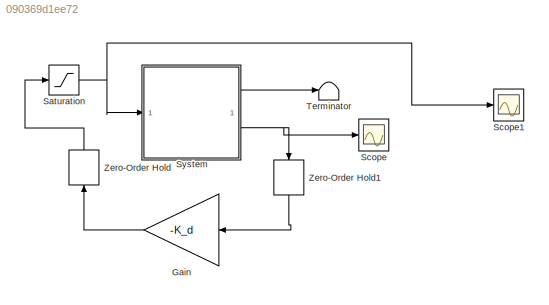
MODEL slx_090369d1ee72
KIND model
CONFIG AbsTol = auto
CONFIG EnableMultiTasking = off
CONFIG FixedStep = auto
CONFIG MaxStep = auto
CONFIG MinStep = auto
CONFIG RelTol = 1e-3
CONFIG SampleTimeConstraint = Unconstrained
CONFIG SolverName = VariableStepAuto
CONFIG StartTime = 0.0
CONFIG StopTime = 10
BLOCK [Gain] Gain
  Gain = -K_d
  Multiplication = Matrix(K*u) (u vector)
  NameLocation = top
BLOCK [Saturate] Saturation
  LowerLimit = -12
  UpperLimit = 12
BLOCK [Scope] Scope
  Floating = off
  NumInputPorts = 1
  ScopeSpecificationString = Simulink.scopes.TimeScopeBlockCfg('CurrentConfiguration', extmgr.ConfigurationSet(extmgr.Configuration('Core','General UI',true),extmgr.Configuration('Core','Source UI',true),extmgr.Configuration('Sources','WiredSimulink',true),extmgr.Configuration('Visuals','Time Domain',true,'SerializedDisplays',{struct('MinYLimReal','-0.50806','MaxYLimReal','0.22152','YLabelReal','','MinYLimMag','0.00000','MaxY...<+1941ch>
BLOCK [Scope] Scope1
  Floating = off
  NumInputPorts = 1
  ScopeSpecificationString = Simulink.scopes.TimeScopeBlockCfg('CurrentConfiguration', extmgr.ConfigurationSet(extmgr.Configuration('Core','General UI',true),extmgr.Configuration('Core','Source UI',true),extmgr.Configuration('Sources','WiredSimulink',true,'DataLoggingVariableName','ScopeData1'),extmgr.Configuration('Visuals','Time Domain',true,'SerializedDisplays',{struct('MinYLimReal','-2.56543','MaxYLimReal','23.08024','YLa...<+1429ch>
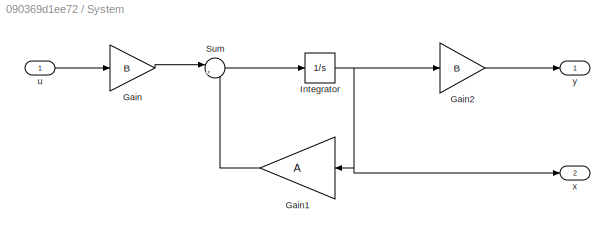
BLOCK [SubSystem] System
BLOCK [Gain] System/Gain
  Gain = B
  Multiplication = Matrix(K*u)
BLOCK [Gain] System/Gain1
  Gain = A
  Multiplication = Matrix(K*u) (u vector)
  NameLocation = top
BLOCK [Gain] System/Gain2
  Gain = B
  Multiplication = Matrix(u*K)
BLOCK [Integrator] System/Integrator
  InitialCondition = x0
BLOCK [Sum] System/Sum
  Inputs = |++
BLOCK [Inport] System/u
BLOCK [Outport] System/x
  Port = 2
BLOCK [Outport] System/y
BLOCK [Terminator] Terminator
BLOCK [ZeroOrderHold] Zero-Order Hold
  NameLocation = right
  SampleTime = Ts
BLOCK [ZeroOrderHold] Zero-Order Hold1
  NameLocation = left
  SampleTime = Ts
LINE Gain:1 -> Zero-Order Hold:1
NET Saturation:1 -> Scope1:1, System:1
LINE System/Gain1:1 -> System/Sum:2
LINE System/Gain2:1 -> System/y:1
LINE System/Gain:1 -> System/Sum:1
NET System/Integrator:1 -> System/Gain1:1, System/Gain2:1, System/x:1
LINE System/Sum:1 -> System/Integrator:1
LINE System/u:1 -> System/Gain:1
LINE System:1 -> Terminator:1
NET System:2 -> Scope:1, Zero-Order Hold1:1
LINE Zero-Order Hold1:1 -> Gain:1
LINE Zero-Order Hold:1 -> Saturation:1
note: NET lines group one-source signal fan-out (src -> all destinations, sorted); 1:1 wires keep LINE
